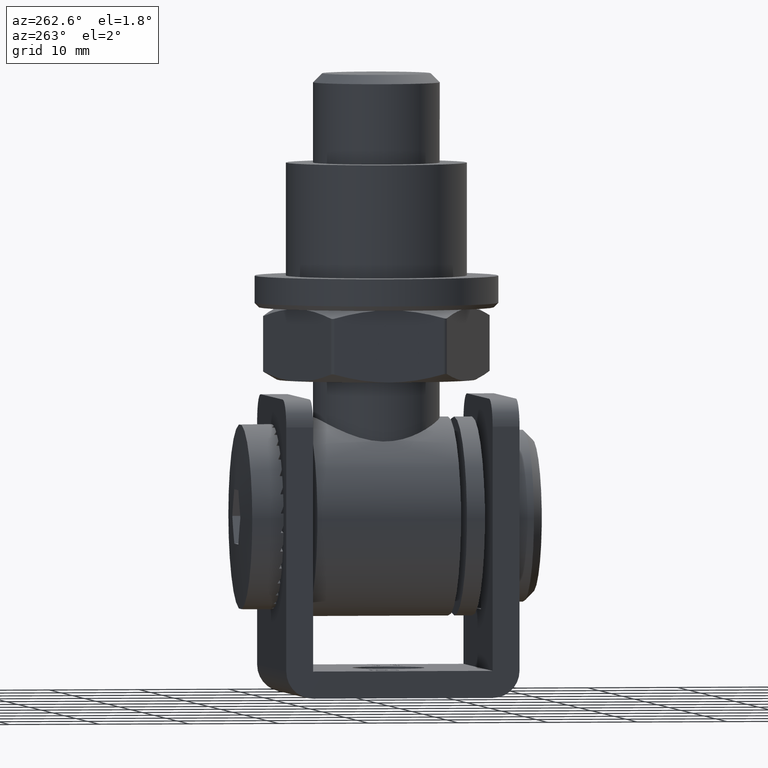
[diagram: clean part render]
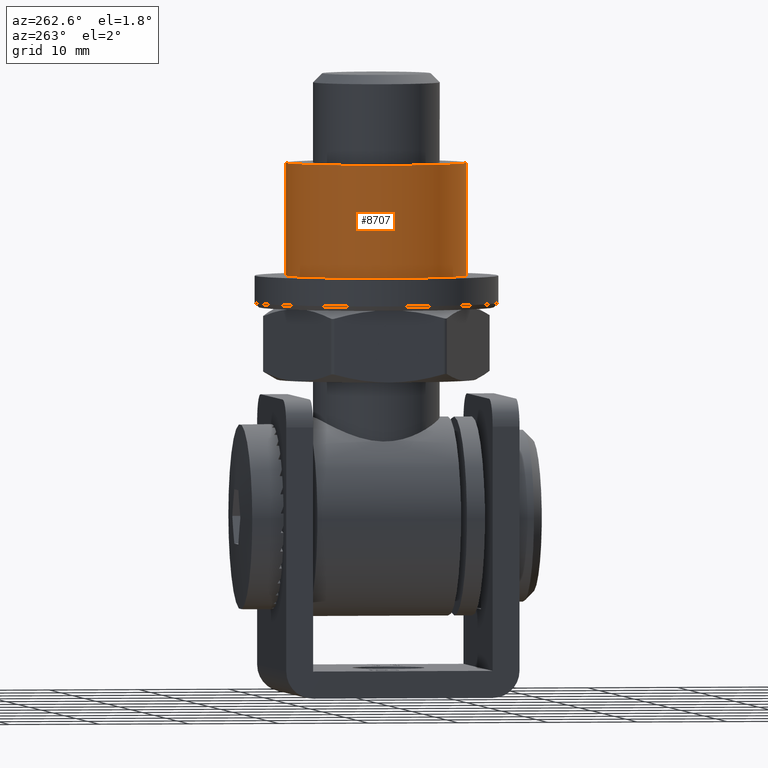
[diagram: same view with one face highlighted and labeled with its STEP entity id]
A machine part, auxiliary view. The second image highlights one B-rep face of the part: STEP entity #8707.
In plain terms, the highlighted cylindrical surface (bore or boss wall) has radius 10 mm, axis along (0, 0, 1).
Its self-contained STEP definition (entity closure, byte-faithful):
#1954 = EDGE_LOOP ( 'NONE', ( #12397 ) ) ;
#3205 = AXIS2_PLACEMENT_3D ( 'NONE', #9284, #20586, #10783 ) ;
#4904 = EDGE_CURVE ( 'NONE', #10419, #10419, #13213, .T. ) ;
#6577 = CARTESIAN_POINT ( 'NONE',  ( 0.000000000000000000, 0.000000000000000000, 8.000000000000007105 ) ) ;
#7636 = FACE_OUTER_BOUND ( 'NONE', #19282, .T. ) ;
#8707 = ADVANCED_FACE ( 'NONE', ( #10706, #7636 ), #12232, .T. ) ;
#8860 = DIRECTION ( 'NONE',  ( -0.000000000000000000, -0.000000000000000000, 1.000000000000000000 ) ) ;
#9284 = CARTESIAN_POINT ( 'NONE',  ( 0.000000000000000000, 0.000000000000000000, -4.500000000000003553 ) ) ;
#9289 = ORIENTED_EDGE ( 'NONE', *, *, #4904, .T. ) ;
#9711 = CARTESIAN_POINT ( 'NONE',  ( 9.999999999999998224, 0.000000000000000000, -4.500000000000003553 ) ) ;
#10419 = VERTEX_POINT ( 'NONE', #9711 ) ;
#10501 = CARTESIAN_POINT ( 'NONE',  ( 0.000000000000000000, 0.000000000000000000, 8.000000000000007105 ) ) ;
#10706 = FACE_OUTER_BOUND ( 'NONE', #1954, .T. ) ;
#10783 = DIRECTION ( 'NONE',  ( 1.000000000000000000, 0.000000000000000000, 0.000000000000000000 ) ) ;
#12232 = CYLINDRICAL_SURFACE ( 'NONE', #20904, 10.00000000000000000 ) ;
#12397 = ORIENTED_EDGE ( 'NONE', *, *, #18743, .F. ) ;
#13213 = CIRCLE ( 'NONE', #3205, 9.999999999999998224 ) ;
#13220 = VERTEX_POINT ( 'NONE', #16501 ) ;
#13438 = DIRECTION ( 'NONE',  ( 1.000000000000000000, 0.000000000000000000, 0.000000000000000000 ) ) ;
#13742 = DIRECTION ( 'NONE',  ( 1.000000000000000000, 0.000000000000000000, 0.000000000000000000 ) ) ;
#15748 = AXIS2_PLACEMENT_3D ( 'NONE', #10501, #8860, #13742 ) ;
#16501 = CARTESIAN_POINT ( 'NONE',  ( 10.00000000000000178, 0.000000000000000000, 8.000000000000007105 ) ) ;
#18235 = DIRECTION ( 'NONE',  ( -0.000000000000000000, -0.000000000000000000, 1.000000000000000000 ) ) ;
#18743 = EDGE_CURVE ( 'NONE', #13220, #13220, #19299, .T. ) ;
#19282 = EDGE_LOOP ( 'NONE', ( #9289 ) ) ;
#19299 = CIRCLE ( 'NONE', #15748, 10.00000000000000178 ) ;
#20586 = DIRECTION ( 'NONE',  ( -0.000000000000000000, -0.000000000000000000, 1.000000000000000000 ) ) ;
#20904 = AXIS2_PLACEMENT_3D ( 'NONE', #6577, #18235, #13438 ) ;